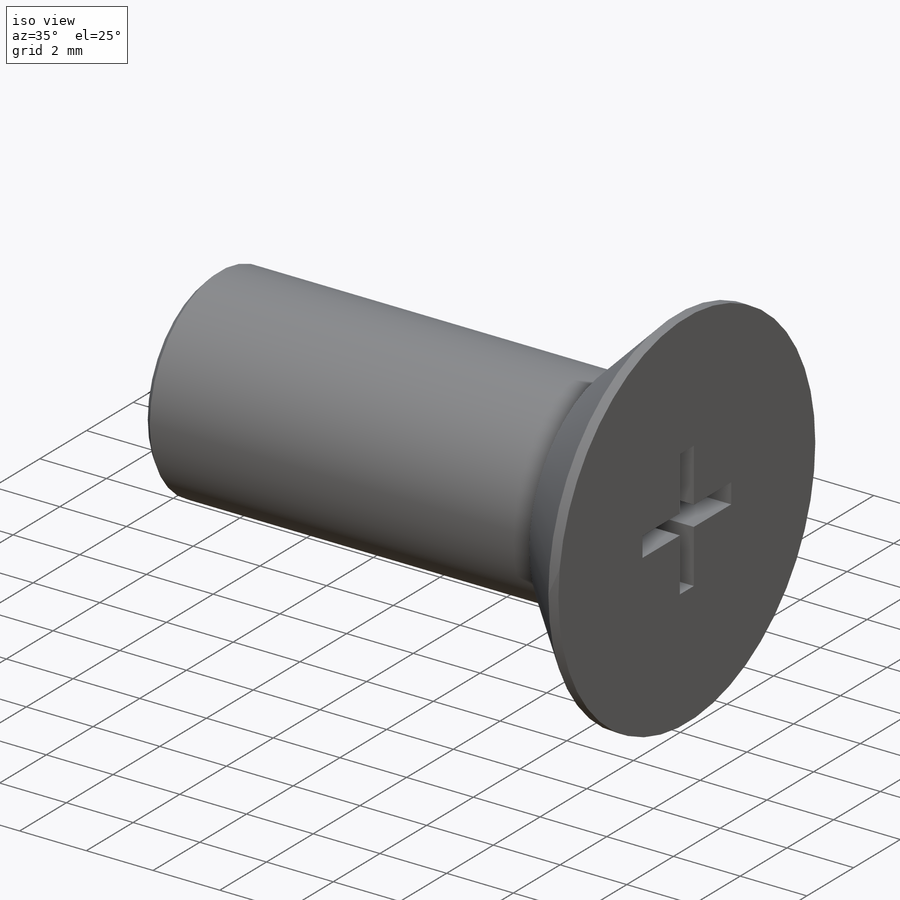
[diagram: iso view]
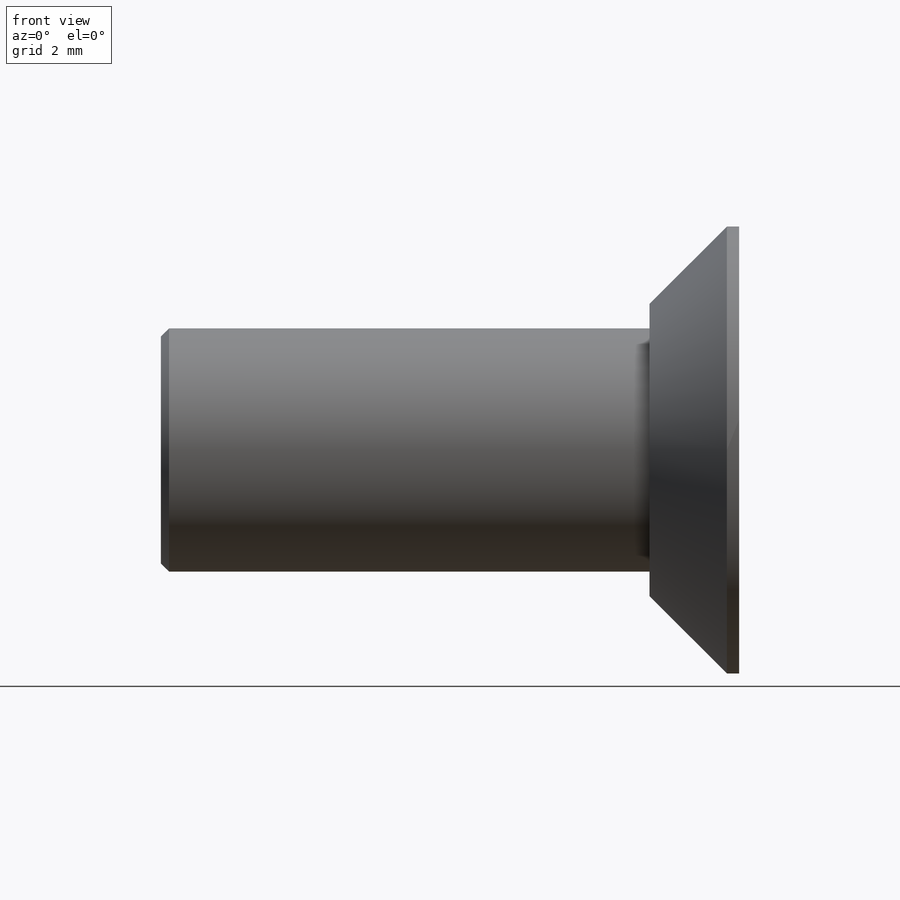
[diagram: front view]
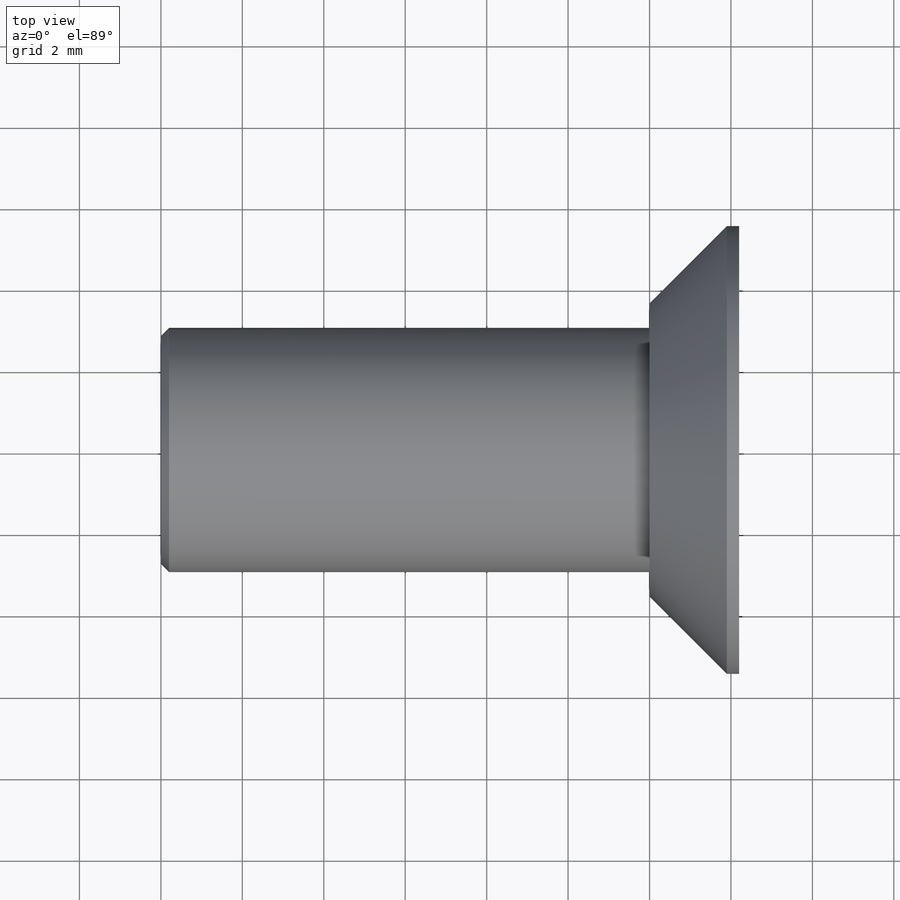
[diagram: top view]
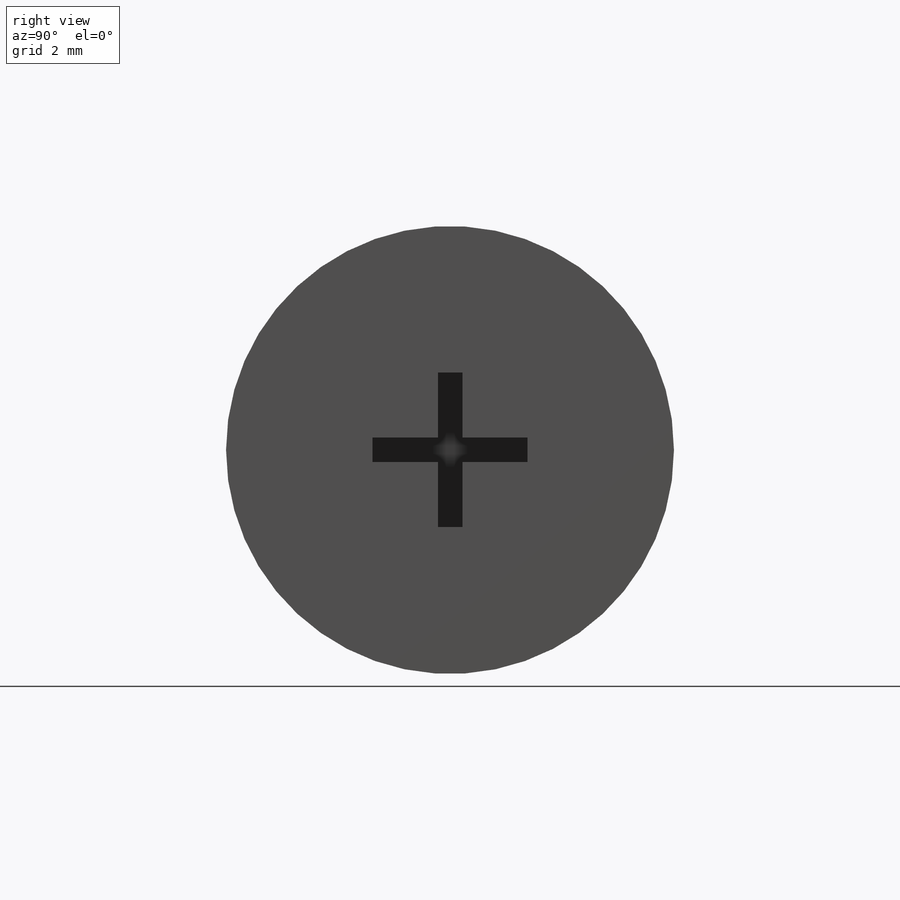
[diagram: right view]
SOLIDWORKS PART (.sldprt)
format: sldprt  version: not decoded by parser v0  size: 265,216 bytes
history: native  units: mm
features: plane x3, sketch x3, extrude x2, chamfer x2, material x1, thread x1, cut_extrude x1 (+8 scaffold rows collapsed)
feature tree (21):
  scaffold x8  (default folders/planes/origin — collapsed)
  material  "材质 <未指定>"
  plane  "前视基准面"
  plane  "上视基准面"
  plane  "右视基准面"
  sketch  "草图1"  dims[D1=11.0mm]
  extrude  "凸台-拉伸1"  Depth=2.2mm
  sketch  "草图2"  dims[D1=6.0mm]
  extrude  "凸台-拉伸3"  [1 undecoded]
  thread  "装饰螺纹线2"  Diameter=4mm  [1 undecoded]
  chamfer  "倒角2"  Distance=0.2mm Angle=45deg
  chamfer  "倒角3"  Distance=1.9mm Angle=45deg
  sketch  "草图5"  dims[D1=0.6mm D2=0.6mm D3=0.6mm D4=0.6mm D5=0.3mm D6=0.3mm D7=0.3mm D8=0.3mm D9=1.6mm D10=1.6mm D11=1.6mm D12=1.6mm]
  cut_extrude  "切除-拉伸2"  Depth=3mm
decode coverage: 8 of 9 modeling features carry decoded parameters
note: 2 parameter values undecoded
note: suppression state not decoded; provenance and decode notes live in map.json
